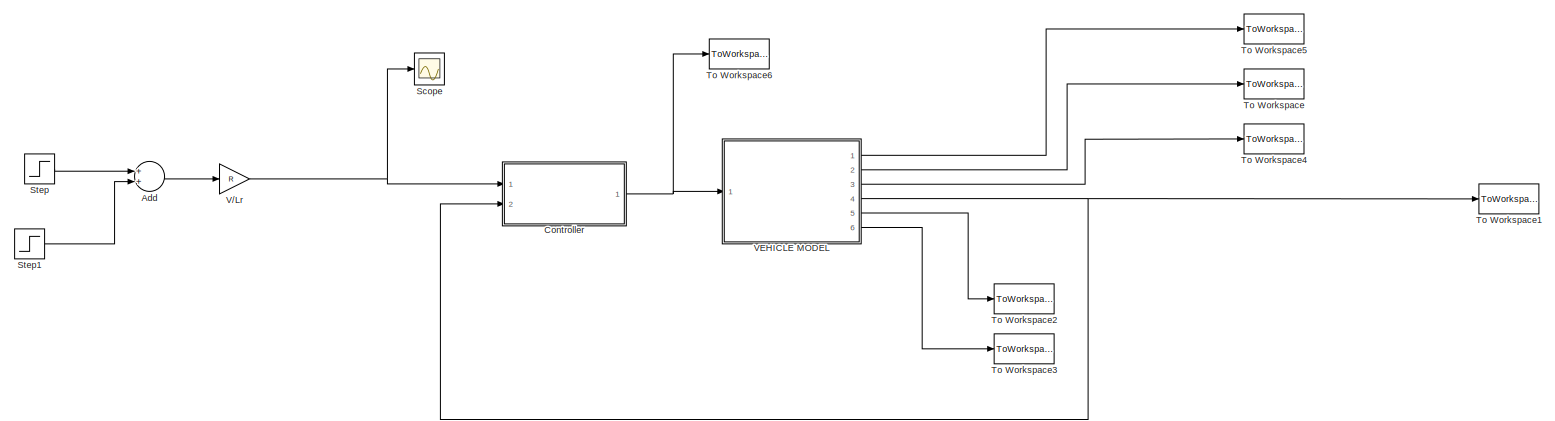
[diagram: root canvas - part 1/1, most of the canvas]
MODEL slx_e915ff74586b
KIND model
CONFIG AbsTol = auto
CONFIG FixedStep = 0.01
CONFIG MaxStep = 0.01
CONFIG MinStep = auto
CONFIG RelTol = 1e-3
CONFIG SampleTimeConstraint = Unconstrained
CONFIG Solver = FixedStepAuto
CONFIG SolverMode = Auto
CONFIG SolverName = FixedStepAuto
CONFIG StartTime = 0.0
CONFIG StopTime = 20
BLOCK [Sum] Add
  InputSameDT = off
  OutDataTypeStr = Inherit: Inherit via internal rule
  Ports = [2, 1]
  SaturateOnIntegerOverflow = off
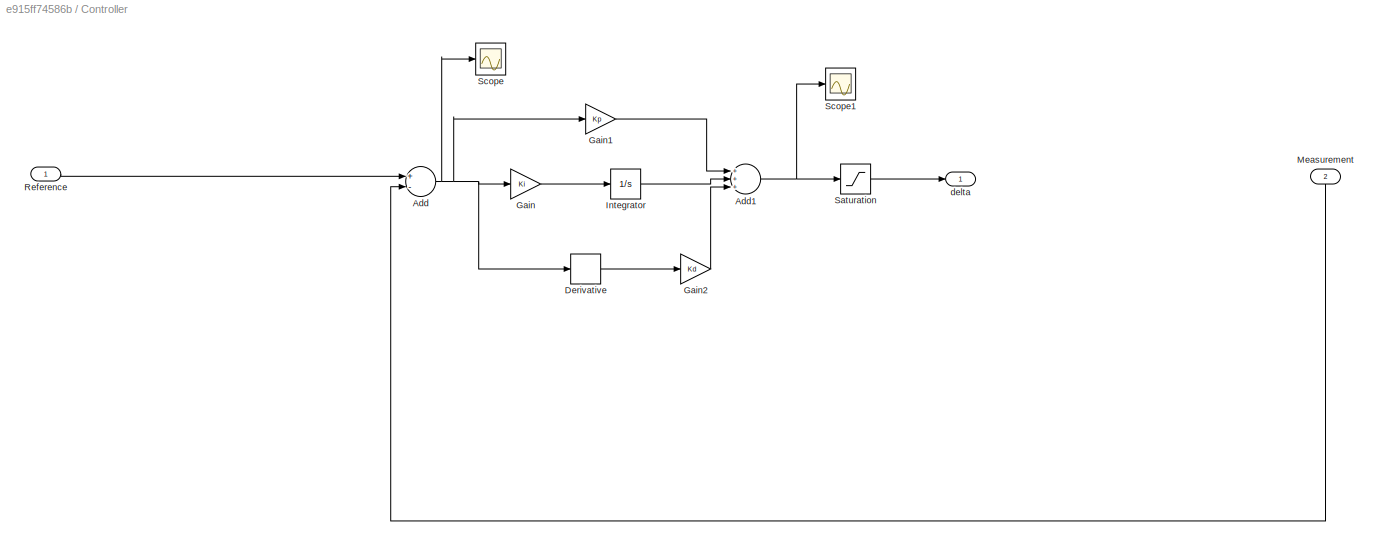
BLOCK [SubSystem] Controller
  Ports = [2, 1]
  RequestExecContextInheritance = off
  Variant = off
BLOCK [Sum] Controller/Add
  InputSameDT = off
  Inputs = +-
  OutDataTypeStr = Inherit: Inherit via internal rule
  Ports = [2, 1]
  SaturateOnIntegerOverflow = off
BLOCK [Sum] Controller/Add1
  InputSameDT = off
  Inputs = +++
  OutDataTypeStr = Inherit: Inherit via internal rule
  Ports = [3, 1]
  SaturateOnIntegerOverflow = off
BLOCK [Derivative] Controller/Derivative
BLOCK [Gain] Controller/Gain
  Gain = Ki
  OutDataTypeStr = Inherit: Inherit via internal rule
  ParamDataTypeStr = Inherit: Inherit via internal rule
  SaturateOnIntegerOverflow = off
BLOCK [Gain] Controller/Gain1
  Gain = Kp
  OutDataTypeStr = Inherit: Inherit via internal rule
  ParamDataTypeStr = Inherit: Inherit via internal rule
  SaturateOnIntegerOverflow = off
BLOCK [Gain] Controller/Gain2
  Gain = Kd
  OutDataTypeStr = Inherit: Inherit via internal rule
  ParamDataTypeStr = Inherit: Inherit via internal rule
  SaturateOnIntegerOverflow = off
BLOCK [Integrator] Controller/Integrator
  LimitOutput = on
  LowerSaturationLimit = -pi/6
  Ports = [1, 1]
  UpperSaturationLimit = pi/6
BLOCK [Inport] Controller/Measurement
  IconDisplay = Port number
  Port = 2
BLOCK [Inport] Controller/Reference
  IconDisplay = Port number
BLOCK [Saturate] Controller/Saturation
  InputPortMap = u0
  LowerLimit = -pi/6
  Ports = [1, 1]
  UpperLimit = pi/6
BLOCK [Scope] Controller/Scope
  Ports = [1]
  ScopeSpecificationString = Simulink.scopes.TimeScopeBlockCfg('CurrentConfiguration', extmgr.ConfigurationSet(extmgr.Configuration('Core','General UI',true),extmgr.Configuration('Core','Source UI',true),extmgr.Configuration('Sources','WiredSimulink',true,'DataLoggingVariableName','ScopeData1'),extmgr.Configuration('Visuals','Time Domain',true,'SerializedDisplays',{struct('MinYLimReal','-1.00000','MaxYLimReal','9.00000','YLab...<+1417ch>
BLOCK [Scope] Controller/Scope1
  Ports = [1]
  ScopeSpecificationString = Simulink.scopes.TimeScopeBlockCfg('CurrentConfiguration', extmgr.ConfigurationSet(extmgr.Configuration('Core','General UI',true),extmgr.Configuration('Core','Source UI',true),extmgr.Configuration('Sources','WiredSimulink',true,'DataLoggingVariableName','ScopeData2'),extmgr.Configuration('Visuals','Time Domain',true,'SerializedDisplays',{struct('MinYLimReal','-4.00000','MaxYLimReal','36.00000','YLa...<+1422ch>
BLOCK [Outport] Controller/delta
  IconDisplay = Port number
BLOCK [Scope] Scope
  Ports = [1]
  ScopeSpecificationString = Simulink.scopes.TimeScopeBlockCfg('CurrentConfiguration', extmgr.ConfigurationSet(extmgr.Configuration('Core','General UI',true),extmgr.Configuration('Core','Source UI',true),extmgr.Configuration('Sources','WiredSimulink',true),extmgr.Configuration('Visuals','Time Domain',true,'SerializedDisplays',{struct('MinYLimReal','-1.00000','MaxYLimReal','9.00000','YLabelReal','','MinYLimMag','0.00000','MaxY...<+1405ch>
BLOCK [Step] Step
  SampleTime = 0
BLOCK [Step] Step1
  After = 0
  SampleTime = 0
  Time = 5
BLOCK [ToWorkspace] To Workspace
  FixptAsFi = on
  MaxDataPoints = inf
  Ports = [1]
  SampleTime = -1
  Save2DSignal = 3-D array (concatenate along third dimension)
  SaveFormat = Structure With Time
  VariableName = Psi
BLOCK [ToWorkspace] To Workspace1
  FixptAsFi = on
  MaxDataPoints = inf
  Ports = [1]
  SampleTime = -1
  Save2DSignal = 3-D array (concatenate along third dimension)
  SaveFormat = Structure With Time
  VariableName = Y
BLOCK [ToWorkspace] To Workspace2
  FixptAsFi = on
  MaxDataPoints = inf
  Ports = [1]
  SampleTime = -1
  Save2DSignal = 3-D array (concatenate along third dimension)
  SaveFormat = Structure With Time
  VariableName = X
BLOCK [ToWorkspace] To Workspace3
  FixptAsFi = on
  MaxDataPoints = inf
  Ports = [1]
  SampleTime = -1
  Save2DSignal = 3-D array (concatenate along third dimension)
  SaveFormat = Structure With Time
  VariableName = XDot
BLOCK [ToWorkspace] To Workspace4
  FixptAsFi = on
  MaxDataPoints = inf
  Ports = [1]
  SampleTime = -1
  Save2DSignal = 3-D array (concatenate along third dimension)
  SaveFormat = Structure With Time
  VariableName = YDot
BLOCK [ToWorkspace] To Workspace5
  FixptAsFi = on
  MaxDataPoints = inf
  Ports = [1]
  SampleTime = -1
  Save2DSignal = 3-D array (concatenate along third dimension)
  SaveFormat = Structure With Time
  VariableName = PsiDot
BLOCK [ToWorkspace] To Workspace6
  FixptAsFi = on
  MaxDataPoints = inf
  Ports = [1]
  SampleTime = -1
  Save2DSignal = 3-D array (concatenate along third dimension)
  SaveFormat = Structure With Time
  VariableName = delta
BLOCK [Gain] V//Lr
  Gain = R
  OutDataTypeStr = Inherit: Inherit via internal rule
  ParamDataTypeStr = Inherit: Inherit via internal rule
  SaturateOnIntegerOverflow = off
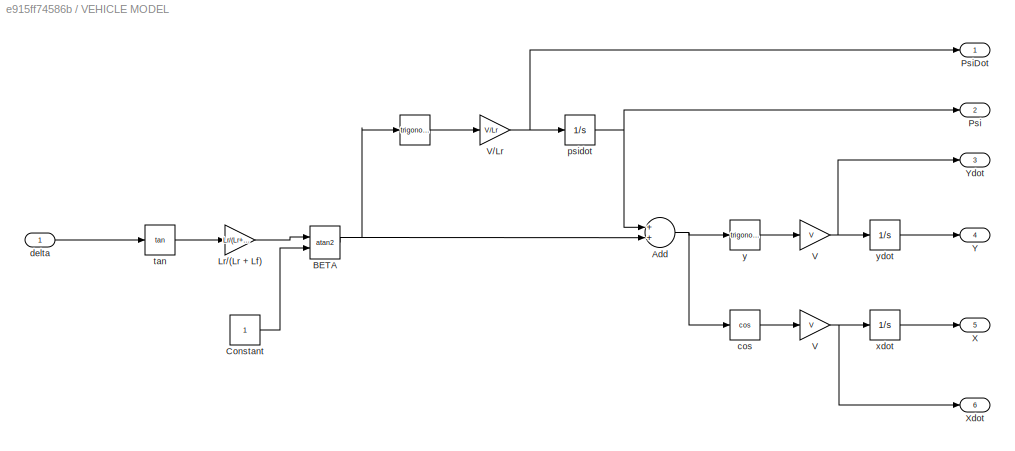
BLOCK [SubSystem] VEHICLE MODEL
  Ports = [1, 6]
  RequestExecContextInheritance = off
  Variant = off
BLOCK [Trigonometry] VEHICLE MODEL/ 
  Ports = [1, 1]
BLOCK [Sum] VEHICLE MODEL/Add
  InputSameDT = off
  OutDataTypeStr = Inherit: Inherit via internal rule
  Ports = [2, 1]
  SaturateOnIntegerOverflow = off
BLOCK [Trigonometry] VEHICLE MODEL/BETA
  Operator = atan2
  Ports = [2, 1]
BLOCK [Constant] VEHICLE MODEL/Constant
BLOCK [Gain] VEHICLE MODEL/Lr//(Lr + Lf)
  Gain = Lr/(Lr+Lf)
  OutDataTypeStr = Inherit: Inherit via internal rule
  ParamDataTypeStr = Inherit: Inherit via internal rule
  SaturateOnIntegerOverflow = off
BLOCK [Outport] VEHICLE MODEL/Psi
  IconDisplay = Port number
  Port = 2
BLOCK [Outport] VEHICLE MODEL/PsiDot
  IconDisplay = Port number
BLOCK [Gain] VEHICLE MODEL/V
  Gain = V
  OutDataTypeStr = Inherit: Inherit via internal rule
  ParamDataTypeStr = Inherit: Inherit via internal rule
  SaturateOnIntegerOverflow = off
BLOCK [Gain] VEHICLE MODEL/V 
  Gain = V
  OutDataTypeStr = Inherit: Inherit via internal rule
  ParamDataTypeStr = Inherit: Inherit via internal rule
  SaturateOnIntegerOverflow = off
BLOCK [Gain] VEHICLE MODEL/V//Lr
  Gain = V/Lr
  OutDataTypeStr = Inherit: Inherit via internal rule
  ParamDataTypeStr = Inherit: Inherit via internal rule
  SaturateOnIntegerOverflow = off
BLOCK [Outport] VEHICLE MODEL/X
  IconDisplay = Port number
  Port = 5
BLOCK [Outport] VEHICLE MODEL/Xdot
  IconDisplay = Port number
  Port = 6
BLOCK [Outport] VEHICLE MODEL/Y
  IconDisplay = Port number
  Port = 4
BLOCK [Outport] VEHICLE MODEL/Ydot
  IconDisplay = Port number
  Port = 3
BLOCK [Trigonometry] VEHICLE MODEL/cos
  Operator = cos
  Ports = [1, 1]
BLOCK [Inport] VEHICLE MODEL/delta 
  IconDisplay = Port number
BLOCK [Integrator] VEHICLE MODEL/psidot
  InitialCondition = Psi0
  Ports = [1, 1]
BLOCK [Trigonometry] VEHICLE MODEL/tan 
  Operator = tan
  Ports = [1, 1]
BLOCK [Integrator] VEHICLE MODEL/xdot
  InitialCondition = X0
  Ports = [1, 1]
BLOCK [Trigonometry] VEHICLE MODEL/y
  Ports = [1, 1]
BLOCK [Integrator] VEHICLE MODEL/ydot
  InitialCondition = Y0
  Ports = [1, 1]
LINE Add:1 -> V//Lr:1
NET Controller/Add1:1 -> Controller/Saturation:1, Controller/Scope1:1
NET Controller/Add:1 -> Controller/Derivative:1, Controller/Gain1:1, Controller/Gain:1, Controller/Scope:1
LINE Controller/Derivative:1 -> Controller/Gain2:1
LINE Controller/Gain1:1 -> Controller/Add1:1
LINE Controller/Gain2:1 -> Controller/Add1:3
LINE Controller/Gain:1 -> Controller/Integrator:1
LINE Controller/Integrator:1 -> Controller/Add1:2
LINE Controller/Measurement:1 -> Controller/Add:2
LINE Controller/Reference:1 -> Controller/Add:1
LINE Controller/Saturation:1 -> Controller/delta:1
NET Controller:1 -> To Workspace6:1, VEHICLE MODEL:1
LINE Step1:1 -> Add:2
LINE Step:1 -> Add:1
NET V//Lr:1 -> Controller:1, Scope:1
LINE VEHICLE MODEL/ :1 -> VEHICLE MODEL/V//Lr:1
NET VEHICLE MODEL/Add:1 -> VEHICLE MODEL/cos:1, VEHICLE MODEL/y:1
NET VEHICLE MODEL/BETA:1 -> VEHICLE MODEL/ :1, VEHICLE MODEL/Add:2
LINE VEHICLE MODEL/Constant:1 -> VEHICLE MODEL/BETA:2
LINE VEHICLE MODEL/Lr//(Lr + Lf):1 -> VEHICLE MODEL/BETA:1
NET VEHICLE MODEL/V :1 -> VEHICLE MODEL/Xdot:1, VEHICLE MODEL/xdot:1
NET VEHICLE MODEL/V//Lr:1 -> VEHICLE MODEL/PsiDot:1, VEHICLE MODEL/psidot:1
NET VEHICLE MODEL/V:1 -> VEHICLE MODEL/Ydot:1, VEHICLE MODEL/ydot:1
LINE VEHICLE MODEL/cos:1 -> VEHICLE MODEL/V :1
LINE VEHICLE MODEL/delta :1 -> VEHICLE MODEL/tan :1
NET VEHICLE MODEL/psidot:1 -> VEHICLE MODEL/Add:1, VEHICLE MODEL/Psi:1
LINE VEHICLE MODEL/tan :1 -> VEHICLE MODEL/Lr//(Lr + Lf):1
LINE VEHICLE MODEL/xdot:1 -> VEHICLE MODEL/X:1
LINE VEHICLE MODEL/y:1 -> VEHICLE MODEL/V:1
LINE VEHICLE MODEL/ydot:1 -> VEHICLE MODEL/Y:1
LINE VEHICLE MODEL:1 -> To Workspace5:1
LINE VEHICLE MODEL:2 -> To Workspace:1
LINE VEHICLE MODEL:3 -> To Workspace4:1
NET VEHICLE MODEL:4 -> Controller:2, To Workspace1:1
LINE VEHICLE MODEL:5 -> To Workspace2:1
LINE VEHICLE MODEL:6 -> To Workspace3:1
note: NET lines group one-source signal fan-out (src -> all destinations, sorted); 1:1 wires keep LINE
